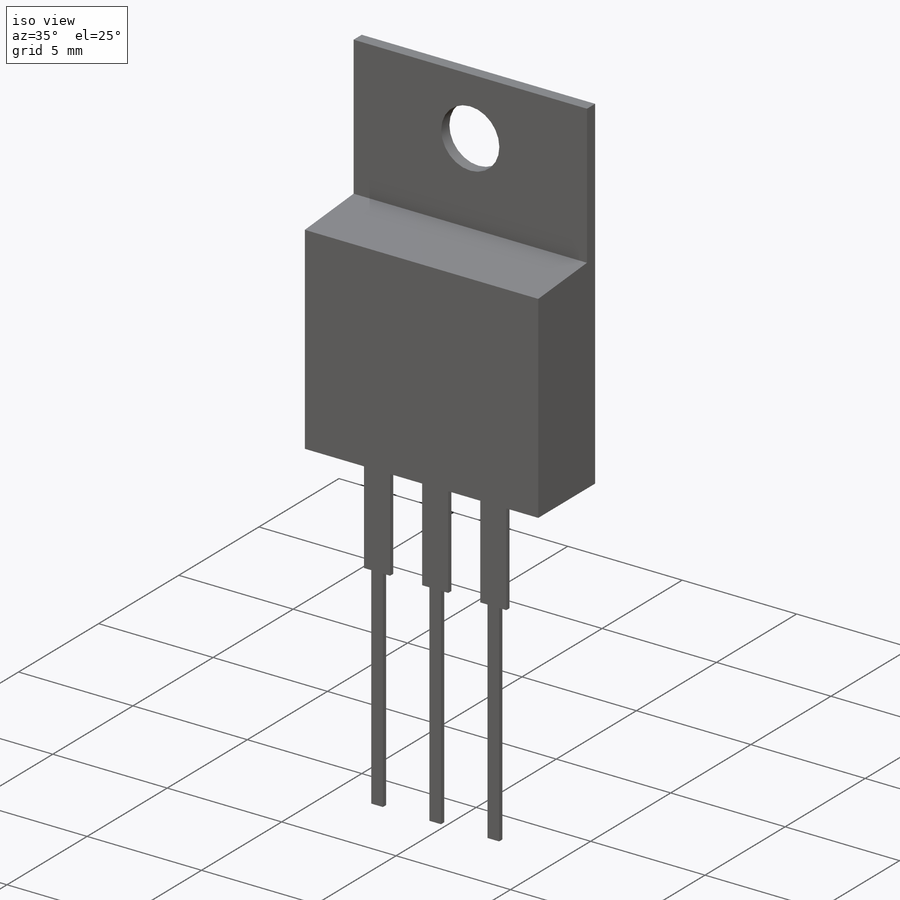
[diagram: iso view]
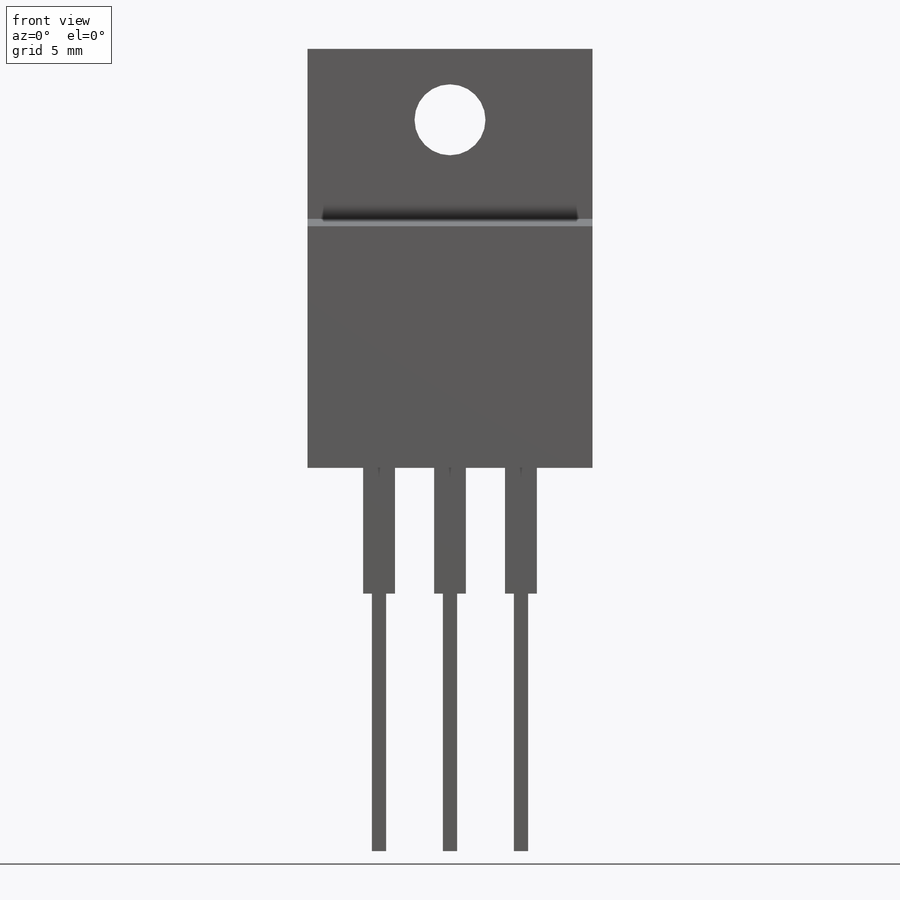
[diagram: front view]
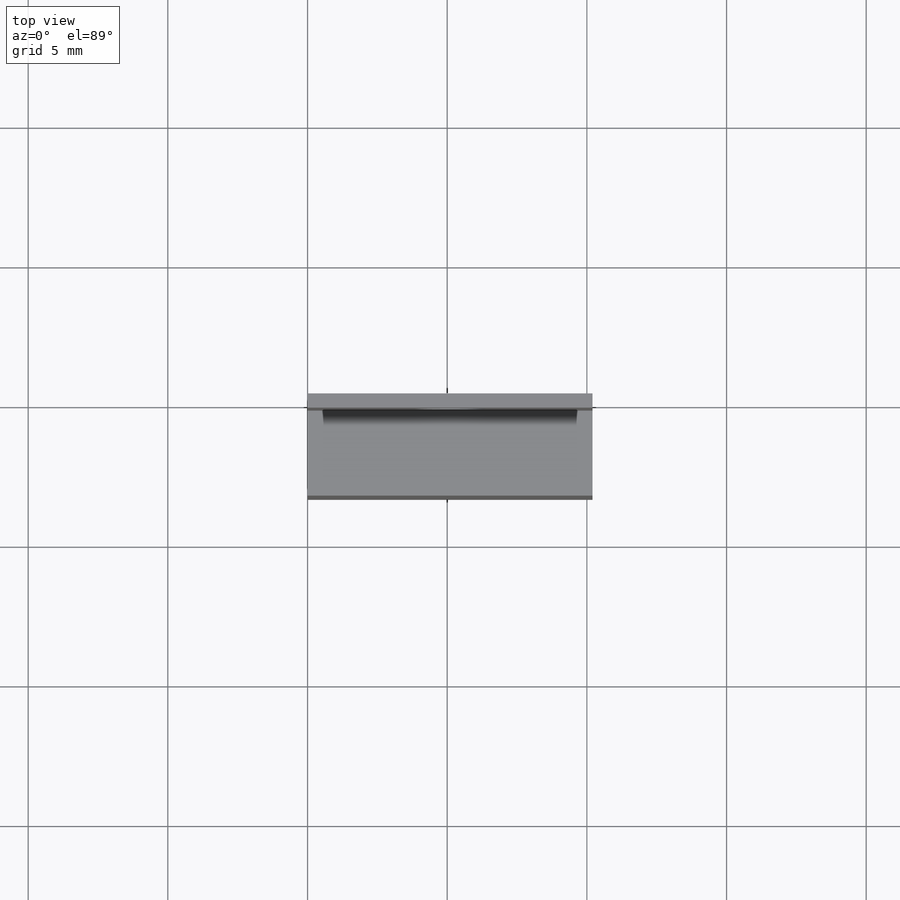
[diagram: top view]
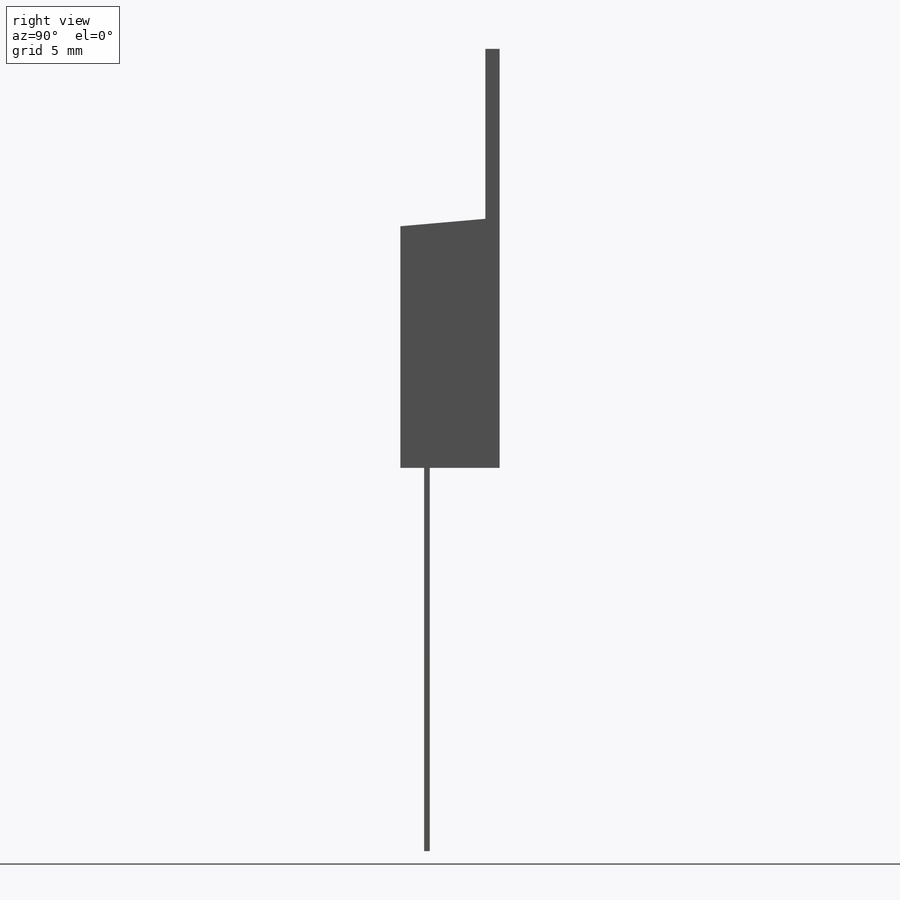
[diagram: right view]
SOLIDWORKS PART (.sldprt)
format: sldprt  version: not decoded by parser v0  size: 194,560 bytes
history: native  units: mm
features: sketch x5, extrude x3, material x1, plane x1, pattern_linear x1, cut_extrude x1 (+13 scaffold rows collapsed)
feature tree (25):
  scaffold x13  (default folders/planes/origin — collapsed)
  material  "Material <not specified>"
  sketch  "Sketch1"  dims[D1=15.0mm D2=10.2mm]
  extrude  "Boss-Extrude1"  Depth=0.51mm
  sketch  "Sketch2"  dims[D1=6.35mm]
  extrude  "Boss-Extrude2"  Depth=3.04mm
  plane  "Plane1"  Offset=2.56mm
  sketch  "Sketch3"  dims[c1.D1=4.5mm c1.D2=2.5mm c2.D1=1.14mm c2.D5=0.2mm c2.D6=10.0mm c2.D7=5.0mm]
  sketch  "Sketch4"  dims[D1=13.72mm]
  extrude  "Extrude-Thin2"  Depth=0.51mm
  pattern_linear  "LPattern1"  Count1=3 Count2=1 Spacing1=2.54mm Spacing2=10mm
  sketch  "Sketch5"  dims[D2=2.54mm D1=2.54mm]
  cut_extrude  "Cut-Extrude1"  [1 undecoded]
decode coverage: 9 of 10 modeling features carry decoded parameters
note: 1 parameter value undecoded
note: suppression state not decoded; provenance and decode notes live in map.json
